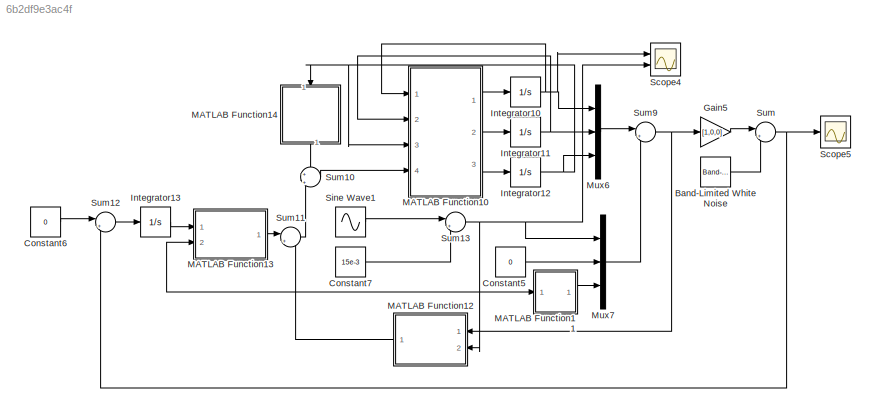
MODEL slx_6b2df9e3ac4f
KIND model
CONFIG AbsTol = auto
CONFIG EnableMultiTasking = off
CONFIG FixedStep = auto
CONFIG MaxStep = auto
CONFIG MinStep = auto
CONFIG RelTol = 1e-3
CONFIG SampleTimeConstraint = Unconstrained
CONFIG Solver = VariableStepAuto
CONFIG SolverName = VariableStepAuto
CONFIG StartTime = 0.0
CONFIG StopTime = 10.0
BLOCK [Reference] Band-Limited White Noise  REF=simulink/Sources/Band-Limited
White Noise
  Ports = [0, 1]
  SourceBlock = simulink/Sources/Band-Limited\nWhite Noise
  SourceProductBaseCode = SL
  SourceProductName = Simulink
  SourceType = Band-Limited White Noise.
BLOCK [Constant] Constant5
  Value = 0
BLOCK [Constant] Constant6
  Value = 0
BLOCK [Constant] Constant7
  Value = 15e-3
BLOCK [Gain] Gain5
  Gain = [1,0,0]
  Multiplication = Matrix(K*u)
  OutDataTypeStr = Inherit: Inherit via internal rule
  ParamDataTypeStr = Inherit: Inherit via internal rule
  SaturateOnIntegerOverflow = off
BLOCK [Integrator] Integrator10
  InitialCondition = 5e-3
  Ports = [1, 1]
BLOCK [Integrator] Integrator11
  Ports = [1, 1]
BLOCK [Integrator] Integrator12
  Ports = [1, 1]
BLOCK [Integrator] Integrator13
  Ports = [1, 1]
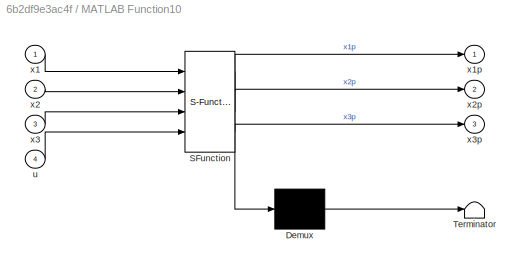
BLOCK [SubSystem] MATLAB Function10
  ErrorFcn = Stateflow.Translate.translate
  PermitHierarchicalResolution = ExplicitOnly
  Ports = [4, 3]
  RequestExecContextInheritance = off
  SFBlockType = MATLAB Function
  TreatAsAtomicUnit = on
BLOCK [Demux] MATLAB Function10/ Demux 
  Outputs = 1
  Ports = [1, 1]
BLOCK [S-Function] MATLAB Function10/ SFunction 
  EnableBusSupport = on
  FunctionName = sf_sfun
  PortCounts = [4 4]
  Ports = [4, 4]
  SFcnIsStateOwnerBlock = off
  SFunctionDeploymentMode = off
  Tag = Stateflow S-Function num3 8
BLOCK [Terminator] MATLAB Function10/ Terminator 
BLOCK [Inport] MATLAB Function10/u
  IconDisplay = Port number
  Port = 4
BLOCK [Inport] MATLAB Function10/x1
  IconDisplay = Port number
BLOCK [Outport] MATLAB Function10/x1p
  IconDisplay = Port number
BLOCK [Inport] MATLAB Function10/x2
  IconDisplay = Port number
  Port = 2
BLOCK [Outport] MATLAB Function10/x2p
  IconDisplay = Port number
  Port = 2
BLOCK [Inport] MATLAB Function10/x3
  IconDisplay = Port number
  Port = 3
BLOCK [Outport] MATLAB Function10/x3p
  IconDisplay = Port number
  Port = 3
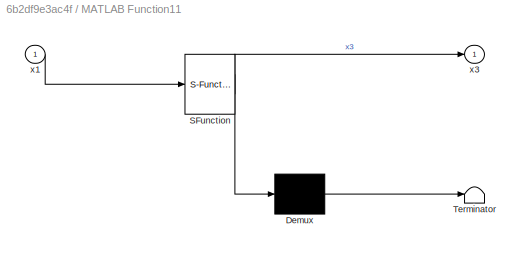
BLOCK [SubSystem] MATLAB Function11
  ErrorFcn = Stateflow.Translate.translate
  PermitHierarchicalResolution = ExplicitOnly
  Ports = [1, 1]
  RequestExecContextInheritance = off
  SFBlockType = MATLAB Function
  TreatAsAtomicUnit = on
BLOCK [Demux] MATLAB Function11/ Demux 
  Outputs = 1
  Ports = [1, 1]
BLOCK [S-Function] MATLAB Function11/ SFunction 
  EnableBusSupport = on
  FunctionName = sf_sfun
  PortCounts = [1 2]
  Ports = [1, 2]
  SFcnIsStateOwnerBlock = off
  SFunctionDeploymentMode = off
  Tag = Stateflow S-Function num3 12
BLOCK [Terminator] MATLAB Function11/ Terminator 
BLOCK [Inport] MATLAB Function11/x1
  IconDisplay = Port number
BLOCK [Outport] MATLAB Function11/x3
  IconDisplay = Port number
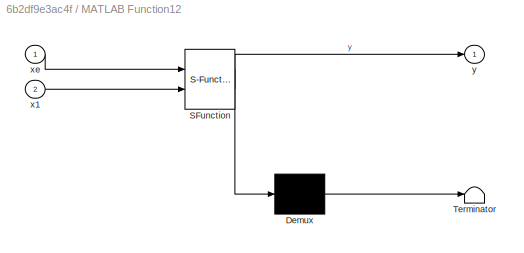
BLOCK [SubSystem] MATLAB Function12
  ErrorFcn = Stateflow.Translate.translate
  PermitHierarchicalResolution = ExplicitOnly
  Ports = [2, 1]
  RequestExecContextInheritance = off
  SFBlockType = MATLAB Function
  TreatAsAtomicUnit = on
BLOCK [Demux] MATLAB Function12/ Demux 
  Outputs = 1
  Ports = [1, 1]
BLOCK [S-Function] MATLAB Function12/ SFunction 
  EnableBusSupport = on
  FunctionName = sf_sfun
  PortCounts = [2 2]
  Ports = [2, 2]
  SFcnIsStateOwnerBlock = off
  SFunctionDeploymentMode = off
  Tag = Stateflow S-Function num3 13
BLOCK [Terminator] MATLAB Function12/ Terminator 
BLOCK [Inport] MATLAB Function12/x1
  IconDisplay = Port number
  Port = 2
BLOCK [Inport] MATLAB Function12/xe
  IconDisplay = Port number
BLOCK [Outport] MATLAB Function12/y
  IconDisplay = Port number
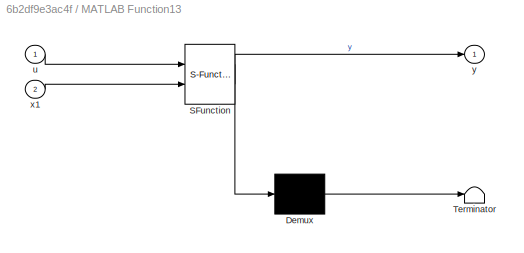
BLOCK [SubSystem] MATLAB Function13
  ErrorFcn = Stateflow.Translate.translate
  PermitHierarchicalResolution = ExplicitOnly
  Ports = [2, 1]
  RequestExecContextInheritance = off
  SFBlockType = MATLAB Function
  TreatAsAtomicUnit = on
BLOCK [Demux] MATLAB Function13/ Demux 
  Outputs = 1
  Ports = [1, 1]
BLOCK [S-Function] MATLAB Function13/ SFunction 
  EnableBusSupport = on
  FunctionName = sf_sfun
  PortCounts = [2 2]
  Ports = [2, 2]
  SFcnIsStateOwnerBlock = off
  SFunctionDeploymentMode = off
  Tag = Stateflow S-Function num3 14
BLOCK [Terminator] MATLAB Function13/ Terminator 
BLOCK [Inport] MATLAB Function13/u
  IconDisplay = Port number
BLOCK [Inport] MATLAB Function13/x1
  IconDisplay = Port number
  Port = 2
BLOCK [Outport] MATLAB Function13/y
  IconDisplay = Port number
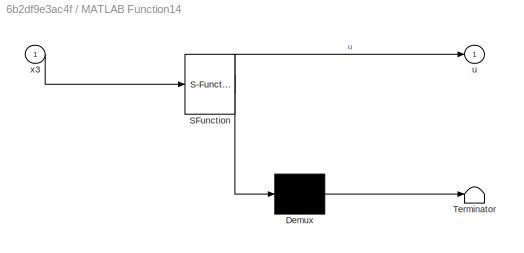
BLOCK [SubSystem] MATLAB Function14
  ErrorFcn = Stateflow.Translate.translate
  PermitHierarchicalResolution = ExplicitOnly
  Ports = [1, 1]
  RequestExecContextInheritance = off
  SFBlockType = MATLAB Function
  TreatAsAtomicUnit = on
BLOCK [Demux] MATLAB Function14/ Demux 
  Outputs = 1
  Ports = [1, 1]
BLOCK [S-Function] MATLAB Function14/ SFunction 
  EnableBusSupport = on
  FunctionName = sf_sfun
  PortCounts = [1 2]
  Ports = [1, 2]
  SFcnIsStateOwnerBlock = off
  SFunctionDeploymentMode = off
  Tag = Stateflow S-Function num3 15
BLOCK [Terminator] MATLAB Function14/ Terminator 
BLOCK [Outport] MATLAB Function14/u
  IconDisplay = Port number
BLOCK [Inport] MATLAB Function14/x3
  IconDisplay = Port number
BLOCK [Mux] Mux6
  DisplayOption = bar
  Inputs = 3
  Ports = [3, 1]
BLOCK [Mux] Mux7
  DisplayOption = bar
  Inputs = 3
  Ports = [3, 1]
BLOCK [Scope] Scope4
  Floating = off
  NumInputPorts = 2
  Ports = [2]
  ScopeSpecificationString = Simulink.scopes.TimeScopeBlockCfg('CurrentConfiguration', extmgr.ConfigurationSet(extmgr.Configuration('Core','General UI',true,'FigureColor',[0.8 0.8 0.8]),extmgr.Configuration('Core','Source UI',true),extmgr.Configuration('Sources','WiredSimulink',true,'DataLoggingVariableName','ScopeData4'),extmgr.Configuration('Visuals','Time Domain',true,'SerializedDisplays',{struct('MinYLimReal','0.00021','M...<+1621ch>
BLOCK [Scope] Scope5
  Floating = off
  NumInputPorts = 1
  Ports = [1]
  ScopeSpecificationString = Simulink.scopes.TimeScopeBlockCfg('CurrentConfiguration', extmgr.ConfigurationSet(extmgr.Configuration('Core','General UI',true,'FigureColor',[0.8 0.8 0.8]),extmgr.Configuration('Core','Source UI',true),extmgr.Configuration('Sources','WiredSimulink',true,'DataLoggingVariableName','ScopeData5'),extmgr.Configuration('Visuals','Time Domain',true,'SerializedDisplays',{struct('MinYLimReal','-0.00701','...<+1516ch>
BLOCK [Sin] Sine Wave1
  Amplitude = 10e-3
  Frequency = 2
  Phase = 3+pi/2
  Ports = [0, 1]
  SampleTime = 0
BLOCK [Sum] Sum
  IconShape = round
  InputSameDT = off
  Inputs = |++
  OutDataTypeStr = Inherit: Inherit via internal rule
  Ports = [2, 1]
  SaturateOnIntegerOverflow = off
BLOCK [Sum] Sum10
  IconShape = round
  InputSameDT = off
  Inputs = +|+
  OutDataTypeStr = Inherit: Inherit via internal rule
  Ports = [2, 1]
  SaturateOnIntegerOverflow = off
BLOCK [Sum] Sum11
  IconShape = round
  InputSameDT = off
  Inputs = |+-
  OutDataTypeStr = Inherit: Inherit via internal rule
  Ports = [2, 1]
  SaturateOnIntegerOverflow = off
BLOCK [Sum] Sum12
  IconShape = round
  InputSameDT = off
  Inputs = |+-
  OutDataTypeStr = Inherit: Inherit via internal rule
  Ports = [2, 1]
  SaturateOnIntegerOverflow = off
BLOCK [Sum] Sum13
  IconShape = round
  InputSameDT = off
  Inputs = |++
  OutDataTypeStr = Inherit: Inherit via internal rule
  Ports = [2, 1]
  SaturateOnIntegerOverflow = off
BLOCK [Sum] Sum9
  IconShape = round
  InputSameDT = off
  Inputs = |+-
  OutDataTypeStr = Inherit: Inherit via internal rule
  Ports = [2, 1]
  SaturateOnIntegerOverflow = off
LINE Band-Limited White Noise:1 -> Sum:2
LINE Constant5:1 -> Mux7:2
LINE Constant6:1 -> Sum12:1
LINE Constant7:1 -> Sum13:2
LINE Gain5:1 -> Sum:1
NET Integrator10:1 -> MATLAB Function10:1, Mux6:1, Scope4:1
NET Integrator11:1 -> MATLAB Function10:2, Mux6:2
NET Integrator12:1 -> MATLAB Function10:3, MATLAB Function14:1, Mux6:3
LINE Integrator13:1 -> MATLAB Function13:1
LINE MATLAB Function10:1 -> Integrator10:1
LINE MATLAB Function10:2 -> Integrator11:1
LINE MATLAB Function10:3 -> Integrator12:1
LINE MATLAB Function11:1 -> Mux7:3
LINE MATLAB Function12:1 -> Sum11:2
LINE MATLAB Function13:1 -> Sum11:1
LINE MATLAB Function14:1 -> Sum10:1
LINE Mux6:1 -> Sum9:1
LINE Mux7:1 -> Sum9:2
LINE Sine Wave1:1 -> Sum13:1
LINE Sum10:1 -> MATLAB Function10:4
LINE Sum11:1 -> Sum10:2
LINE Sum12:1 -> Integrator13:1
NET Sum13:1 -> MATLAB Function11:1, MATLAB Function12:2, MATLAB Function13:2, Mux7:1, Scope4:2
NET Sum9:1 -> Gain5:1, MATLAB Function12:1
NET Sum:1 -> Scope5:1, Sum12:2
note: NET lines group one-source signal fan-out (src -> all destinations, sorted); 1:1 wires keep LINE
CHART MATLAB Function10 states=1 transitions=1
  STATE_LABEL 'eML_blk_kernel()'
  STATE_LABEL 'SCRIPT:\nfunction [x1p,x2p,x3p] = planta(x1,x2,x3,u)\nc=0.1;\nm=0.01;\nL=100e-3;\nr=10;\ng=9.81;\n\nx1p=x2;\nx2p=g-(c/m)*((x3^2)/x1);\nx3p=-(r/L)*x3+(1/L)*u;\n\n\n'
CHART MATLAB Function11 states=1 transitions=1
  STATE_LABEL 'eML_blk_kernel()'
  STATE_LABEL 'SCRIPT:\nfunction x3  = fcn(x1)\nc=1\nm=0.1\nL=0.01\nr=1\ng=9.81\n\nx3=sqrt((m*g*x1)/c);\n\n\n'
CHART MATLAB Function12 states=1 transitions=1
  STATE_LABEL 'eML_blk_kernel()'
  STATE_LABEL 'SCRIPT:\nfunction y  = Kservo(xe,x1)\n\nk1=-((2.9104e-15)*((6.1932e16)*x1+(1.6179e15)))/(sqrt(0.981*x1));\nk2=-((9.0949e-17)*((1.6551e17)*x1+(5.3931e14)))/(sqrt(0.981*x1));\nk3=-0.4;\nk=[k1,k2,k3];\ny = k*xe;\n'
CHART MATLAB Function13 states=1 transitions=1
  STATE_LABEL 'eML_blk_kernel()'
  STATE_LABEL 'SCRIPT:\nfunction y = ki(u,x1)\n\nk=-((1.0449e3)*x1)/(sqrt(0.981*x1));\ny = k*u;\n\n'
CHART MATLAB Function14 states=1 transitions=1
  STATE_LABEL 'eML_blk_kernel()'
  STATE_LABEL 'SCRIPT:\nfunction u  = u(x3)\nc=1\nm=0.1\nL=0.01\nr=1\ng=9.81\n\nu=r*x3;\n\n\n'
